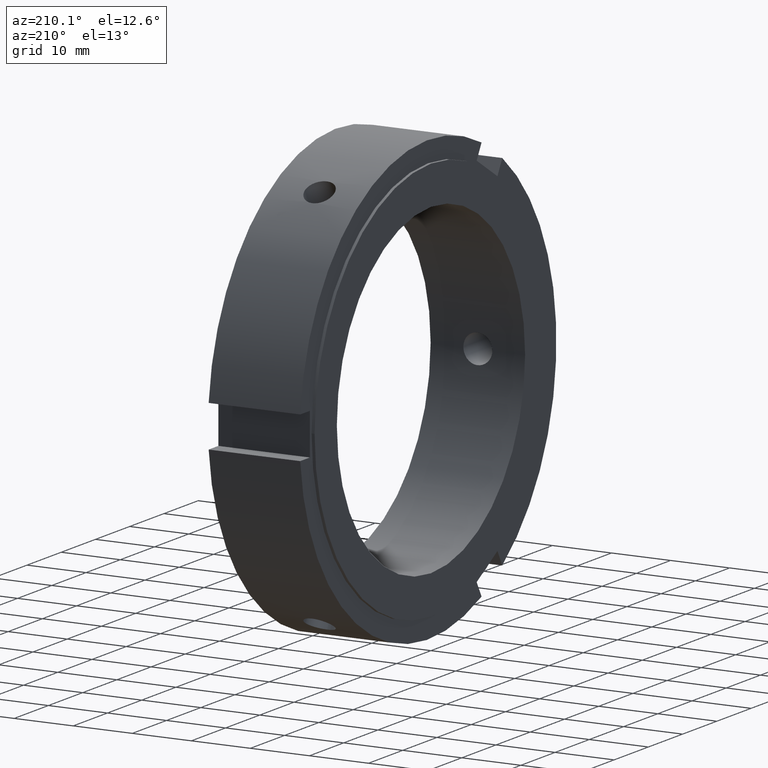
[diagram: clean part render]
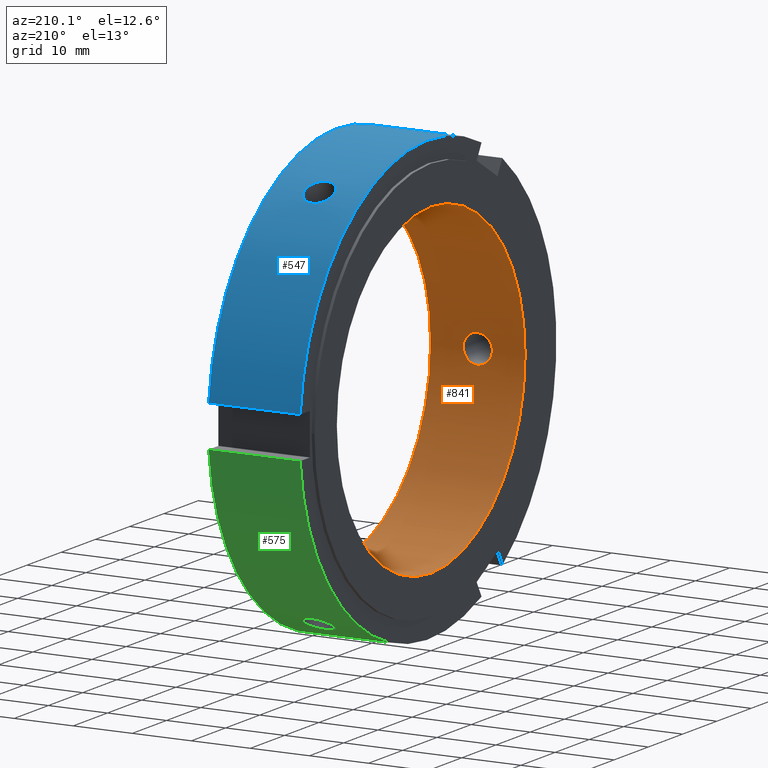
[diagram: same view with three faces highlighted in distinct colors, each labeled with its STEP entity id]
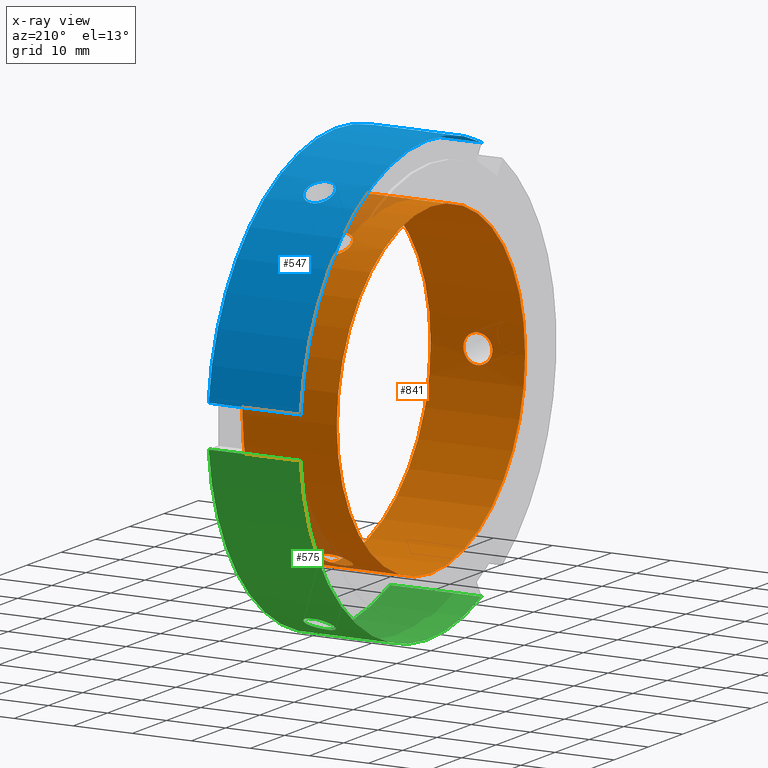
[diagram: x-ray of the same camera — body ghosted, the three highlighted faces saturated]
A machine part, auxiliary view with three faces highlighted in distinct colors.
The next image is the same camera in x-ray (body ghosted, the three faces saturated) — at least one of them is partly hidden behind the body in this view.
Their STEP definitions:

[orange] entity #841 — the highlighted cylindrical surface (bore or boss wall) has radius 27.5 mm, axis along (1, 0, 0).
#216=CARTESIAN_POINT('',(7.999999999999991,15.824065749259187,22.491085860027358));
#217=VERTEX_POINT('',#216);
#218=CARTESIAN_POINT('',(7.999999999999990,15.824065749259182,22.491085860027354));
#219=CARTESIAN_POINT('',(7.691127928927140,15.824065749259182,22.491085860027354));
#220=CARTESIAN_POINT('',(7.361781165696948,15.773459769381567,22.526957607554749));
#221=CARTESIAN_POINT('',(6.756106625812634,15.566529288029738,22.670443710234967));
#222=CARTESIAN_POINT('',(6.479764771078052,15.410061500522726,22.777791838321811));
#223=CARTESIAN_POINT('',(6.043391659325986,15.045971680898859,23.019915995718819));
#224=CARTESIAN_POINT('',(5.854212148169152,14.814005725707379,23.170823302224886));
#225=CARTESIAN_POINT('',(5.603261764644859,14.299844829240742,23.491620974346688));
#226=CARTESIAN_POINT('',(5.541499999999990,14.017490479572585,23.661262903685163));
#227=CARTESIAN_POINT('',(5.541499999999992,13.482509520427419,23.970134304458952));
#228=CARTESIAN_POINT('',(5.603261764644861,13.194418125239217,24.129839379471370));
#229=CARTESIAN_POINT('',(5.854212148169157,12.659518743473512,24.414716941383151));
#230=CARTESIAN_POINT('',(6.043391659325986,12.412846204826833,24.540151698139070));
#231=CARTESIAN_POINT('',(6.479764771078052,12.021115623839190,24.734400652494131));
#232=CARTESIAN_POINT('',(6.756106625812635,11.849915524113781,24.816231667305715));
#233=CARTESIAN_POINT('',(7.361781165696952,11.622187673426776,24.923695669633634));
#234=CARTESIAN_POINT('',(7.691127928927144,11.565818838851092,24.949585860027355));
#235=CARTESIAN_POINT('',(8.308872071072839,11.565818838851092,24.949585860027355));
#236=CARTESIAN_POINT('',(8.638218834303032,11.622187673426774,24.923695669633634));
#237=CARTESIAN_POINT('',(9.243893374187346,11.849915524113776,24.816231667305715));
#238=CARTESIAN_POINT('',(9.520235228921930,12.021115623839185,24.734400652494131));
#239=CARTESIAN_POINT('',(9.956608340673997,12.412846204826828,24.540151698139066));
#240=CARTESIAN_POINT('',(10.145787851830825,12.659518743473509,24.414716941383155));
#241=CARTESIAN_POINT('',(10.396738235355123,13.194418125239215,24.129839379471370));
#242=CARTESIAN_POINT('',(10.458499999999990,13.482509520427419,23.970134304458949));
#243=CARTESIAN_POINT('',(10.458499999999994,14.017490479572585,23.661262903685166));
#244=CARTESIAN_POINT('',(10.396738235355127,14.299844829240737,23.491620974346684));
#245=CARTESIAN_POINT('',(10.145787851830834,14.814005725707375,23.170823302224882));
#246=CARTESIAN_POINT('',(9.956608340674000,15.045971680898859,23.019915995718826));
#247=CARTESIAN_POINT('',(9.520235228921933,15.410061500522726,22.777791838321811));
#248=CARTESIAN_POINT('',(9.243893374187351,15.566529288029736,22.670443710234967));
#249=CARTESIAN_POINT('',(8.638218834303036,15.773459769381565,22.526957607554749));
#250=CARTESIAN_POINT('',(8.308872071072843,15.824065749259182,22.491085860027354));
#251=CARTESIAN_POINT('',(7.999999999999993,15.824065749259182,22.491085860027354));
#252=B_SPLINE_CURVE_WITH_KNOTS('',3,(#218,#219,#220,#221,#222,#223,#224,#225,#226,#227,#228,#229,#230,#231,#232,#233,#234,#235,#236,#237,#238,#239,#240,#241,#242,#243,#244,#245,#246,#247,#248,#249,#250,#251),.UNSPECIFIED.,.T.,.U.,(4,2,2,2,2,2,2,2,2,2,2,2,2,2,2,2,4),(0.0,0.092661621321855,0.185323242643710,0.277984662875846,0.370646083107981,0.463307503340117,0.555968923572252,0.648630544894107,0.741292166215962,0.833953787537816,0.926615408859671,1.019276829091807,1.111938249323943,1.204599669556078,1.297261089788214,1.389922711110069,1.482584332431924),.UNSPECIFIED.);
#253=EDGE_CURVE('',#217,#217,#252,.T.);
#406=CARTESIAN_POINT('',(7.999999999999991,11.565818838851083,-24.949585860027366));
#407=VERTEX_POINT('',#406);
#408=CARTESIAN_POINT('',(7.999999999999993,11.565818838851083,-24.949585860027366));
#409=CARTESIAN_POINT('',(7.691127928927144,11.565818838851083,-24.949585860027366));
#410=CARTESIAN_POINT('',(7.361781165696952,11.622187673426762,-24.923695669633645));
#411=CARTESIAN_POINT('',(6.756106625812638,11.849915524113769,-24.816231667305722));
#412=CARTESIAN_POINT('',(6.479764771078054,12.021115623839176,-24.734400652494138));
#413=CARTESIAN_POINT('',(6.043391659325986,12.412846204826820,-24.540151698139077));
#414=CARTESIAN_POINT('',(5.854212148169155,12.659518743473498,-24.414716941383162));
#415=CARTESIAN_POINT('',(5.603261764644860,13.194418125239210,-24.129839379471370));
#416=CARTESIAN_POINT('',(5.541499999999991,13.482509520427408,-23.970134304458952));
#417=CARTESIAN_POINT('',(5.541499999999991,14.017490479572576,-23.661262903685163));
#418=CARTESIAN_POINT('',(5.603261764644861,14.299844829240733,-23.491620974346688));
#419=CARTESIAN_POINT('',(5.854212148169157,14.814005725707368,-23.170823302224886));
#420=CARTESIAN_POINT('',(6.043391659325986,15.045971680898854,-23.019915995718829));
#421=CARTESIAN_POINT('',(6.479764771078052,15.410061500522719,-22.777791838321818));
#422=CARTESIAN_POINT('',(6.756106625812635,15.566529288029722,-22.670443710234970));
#423=CARTESIAN_POINT('',(7.361781165696948,15.773459769381553,-22.526957607554756));
#424=CARTESIAN_POINT('',(7.691127928927141,15.824065749259169,-22.491085860027358));
#425=CARTESIAN_POINT('',(8.308872071072839,15.824065749259171,-22.491085860027361));
#426=CARTESIAN_POINT('',(8.638218834303030,15.773459769381555,-22.526957607554756));
#427=CARTESIAN_POINT('',(9.243893374187346,15.566529288029724,-22.670443710234977));
#428=CARTESIAN_POINT('',(9.520235228921932,15.410061500522730,-22.777791838321821));
#429=CARTESIAN_POINT('',(9.956608340674000,15.045971680898862,-23.019915995718829));
#430=CARTESIAN_POINT('',(10.145787851830825,14.814005725707371,-23.170823302224889));
#431=CARTESIAN_POINT('',(10.396738235355121,14.299844829240733,-23.491620974346688));
#432=CARTESIAN_POINT('',(10.458499999999994,14.017490479572579,-23.661262903685163));
#433=CARTESIAN_POINT('',(10.458499999999994,13.482509520427408,-23.970134304458952));
#434=CARTESIAN_POINT('',(10.396738235355121,13.194418125239210,-24.129839379471370));
#435=CARTESIAN_POINT('',(10.145787851830825,12.659518743473498,-24.414716941383162));
#436=CARTESIAN_POINT('',(9.956608340673999,12.412846204826820,-24.540151698139077));
#437=CARTESIAN_POINT('',(9.520235228921932,12.021115623839176,-24.734400652494138));
#438=CARTESIAN_POINT('',(9.243893374187346,11.849915524113763,-24.816231667305722));
#439=CARTESIAN_POINT('',(8.638218834303032,11.622187673426760,-24.923695669633645));
#440=CARTESIAN_POINT('',(8.308872071072841,11.565818838851083,-24.949585860027366));
#441=CARTESIAN_POINT('',(7.999999999999991,11.565818838851083,-24.949585860027366));
#442=B_SPLINE_CURVE_WITH_KNOTS('',3,(#408,#409,#410,#411,#412,#413,#414,#415,#416,#417,#418,#419,#420,#421,#422,#423,#424,#425,#426,#427,#428,#429,#430,#431,#432,#433,#434,#435,#436,#437,#438,#439,#440,#441),.UNSPECIFIED.,.T.,.U.,(4,2,2,2,2,2,2,2,2,2,2,2,2,2,2,2,4),(0.0,0.092661621321855,0.185323242643709,0.277984662875845,0.370646083107981,0.463307503340117,0.555968923572253,0.648630544894107,0.741292166215962,0.833953787537817,0.926615408859671,1.019276829091807,1.111938249323944,1.204599669556080,1.297261089788216,1.389922711110070,1.482584332431925),.UNSPECIFIED.);
#443=EDGE_CURVE('',#407,#407,#442,.T.);
#508=CARTESIAN_POINT('',(15.999999999999996,27.500000000000000,0.0));
#509=VERTEX_POINT('',#508);
#510=CARTESIAN_POINT('',(15.999999999999996,0.0,0.0));
#511=DIRECTION('',(1.0,0.0,0.0));
#512=DIRECTION('',(0.0,1.0,0.0));
#513=AXIS2_PLACEMENT_3D('',#510,#511,#512);
#514=CIRCLE('',#513,27.500000000000000);
#515=EDGE_CURVE('',#509,#509,#514,.T.);
#643=CARTESIAN_POINT('',(7.999999999999991,-27.389884588110260,2.458500000000000));
#644=VERTEX_POINT('',#643);
#645=CARTESIAN_POINT('',(7.999999999999993,-27.389884588110260,2.458500000000000));
#646=CARTESIAN_POINT('',(7.691127928927144,-27.389884588110260,2.458500000000000));
#647=CARTESIAN_POINT('',(7.361781165696950,-27.395647442808322,2.396738062078883));
#648=CARTESIAN_POINT('',(6.756106625812635,-27.416444812143492,2.145787957070748));
#649=CARTESIAN_POINT('',(6.479764771078052,-27.431177124361909,1.956608814172314));
#650=CARTESIAN_POINT('',(6.043391659325984,-27.458817885725679,1.520235702420247));
#651=CARTESIAN_POINT('',(5.854212148169155,-27.473524469180877,1.243893639158268));
#652=CARTESIAN_POINT('',(5.603261764644859,-27.494262954479947,0.638218405124681));
#653=CARTESIAN_POINT('',(5.541499999999991,-27.500000000000000,0.308871400773786));
#654=CARTESIAN_POINT('',(5.541499999999991,-27.500000000000000,-0.308871400773786));
#655=CARTESIAN_POINT('',(5.603261764644859,-27.494262954479947,-0.638218405124681));
#656=CARTESIAN_POINT('',(5.854212148169155,-27.473524469180877,-1.243893639158268));
#657=CARTESIAN_POINT('',(6.043391659325984,-27.458817885725679,-1.520235702420247));
#658=CARTESIAN_POINT('',(6.479764771078052,-27.431177124361909,-1.956608814172314));
#659=CARTESIAN_POINT('',(6.756106625812635,-27.416444812143492,-2.145787957070748));
#660=CARTESIAN_POINT('',(7.361781165696950,-27.395647442808322,-2.396738062078883));
#661=CARTESIAN_POINT('',(7.691127928927143,-27.389884588110260,-2.458500000000000));
#662=CARTESIAN_POINT('',(8.308872071072841,-27.389884588110260,-2.458500000000000));
#663=CARTESIAN_POINT('',(8.638218834303032,-27.395647442808322,-2.396738062078883));
#664=CARTESIAN_POINT('',(9.243893374187348,-27.416444812143492,-2.145787957070748));
#665=CARTESIAN_POINT('',(9.520235228921932,-27.431177124361909,-1.956608814172314));
#666=CARTESIAN_POINT('',(9.956608340673999,-27.458817885725679,-1.520235702420246));
#667=CARTESIAN_POINT('',(10.145787851830825,-27.473524469180880,-1.243893639158267));
#668=CARTESIAN_POINT('',(10.396738235355121,-27.494262954479950,-0.638218405124680));
#669=CARTESIAN_POINT('',(10.458499999999994,-27.500000000000000,-0.308871400773786));
#670=CARTESIAN_POINT('',(10.458499999999994,-27.500000000000000,0.308871400773785));
#671=CARTESIAN_POINT('',(10.396738235355125,-27.494262954479950,0.638218405124680));
#672=CARTESIAN_POINT('',(10.145787851830830,-27.473524469180880,1.243893639158266));
#673=CARTESIAN_POINT('',(9.956608340674000,-27.458817885725679,1.520235702420246));
#674=CARTESIAN_POINT('',(9.520235228921932,-27.431177124361909,1.956608814172314));
#675=CARTESIAN_POINT('',(9.243893374187348,-27.416444812143492,2.145787957070748));
#676=CARTESIAN_POINT('',(8.638218834303036,-27.395647442808322,2.396738062078882));
#677=CARTESIAN_POINT('',(8.308872071072843,-27.389884588110260,2.458500000000000));
#678=CARTESIAN_POINT('',(7.999999999999993,-27.389884588110260,2.458500000000000));
#679=B_SPLINE_CURVE_WITH_KNOTS('',3,(#645,#646,#647,#648,#649,#650,#651,#652,#653,#654,#655,#656,#657,#658,#659,#660,#661,#662,#663,#664,#665,#666,#667,#668,#669,#670,#671,#672,#673,#674,#675,#676,#677,#678),.UNSPECIFIED.,.T.,.U.,(4,2,2,2,2,2,2,2,2,2,2,2,2,2,2,2,4),(0.0,0.092661621321855,0.185323242643709,0.277984662875845,0.370646083107981,0.463307503340117,0.555968923572252,0.648630544894107,0.741292166215962,0.833953787537816,0.926615408859671,1.019276829091807,1.111938249323943,1.204599669556078,1.297261089788214,1.389922711110069,1.482584332431923),.UNSPECIFIED.);
#680=EDGE_CURVE('',#644,#644,#679,.T.);
#766=CARTESIAN_POINT('',(-7.525546E-015,27.500000000000000,0.0));
#767=VERTEX_POINT('',#766);
#768=CARTESIAN_POINT('',(-7.524363E-015,0.0,0.0));
#769=DIRECTION('',(1.0,0.0,0.0));
#770=DIRECTION('',(0.0,1.0,0.0));
#771=AXIS2_PLACEMENT_3D('',#768,#769,#770);
#772=CIRCLE('',#771,27.500000000000000);
#773=EDGE_CURVE('',#767,#767,#772,.T.);
#821=CARTESIAN_POINT('',(7.999999999999995,0.0,0.0));
#822=DIRECTION('',(1.0,0.0,0.0));
#823=DIRECTION('',(0.0,1.0,0.0));
#824=AXIS2_PLACEMENT_3D('',#821,#822,#823);
#825=CYLINDRICAL_SURFACE('',#824,27.500000000000000);
#826=ORIENTED_EDGE('',*,*,#773,.F.);
#827=EDGE_LOOP('',(#826));
#828=FACE_OUTER_BOUND('',#827,.T.);
#829=ORIENTED_EDGE('',*,*,#253,.T.);
#830=EDGE_LOOP('',(#829));
#831=FACE_BOUND('',#830,.T.);
#832=ORIENTED_EDGE('',*,*,#443,.T.);
#833=EDGE_LOOP('',(#832));
#834=FACE_BOUND('',#833,.T.);
#835=ORIENTED_EDGE('',*,*,#680,.T.);
#836=EDGE_LOOP('',(#835));
#837=FACE_BOUND('',#836,.T.);
#838=ORIENTED_EDGE('',*,*,#515,.T.);
#839=EDGE_LOOP('',(#838));
#840=FACE_BOUND('',#839,.T.);
#841=ADVANCED_FACE('',(#828,#831,#834,#837,#840),#825,.F.);

[blue] entity #547 — the highlighted cylindrical surface (partial cylindrical patch) has radius 37.5 mm, axis along (1, 0, 0).
#175=CARTESIAN_POINT('',(7.999999999999991,20.838785248980557,31.176834819251145));
#176=VERTEX_POINT('',#175);
#177=CARTESIAN_POINT('',(7.999999999999993,20.838785248980550,31.176834819251141));
#178=CARTESIAN_POINT('',(8.308789855491268,20.838785248980550,31.176834819251141));
#179=CARTESIAN_POINT('',(8.638101463612033,20.787433464880102,31.211350642644668));
#180=CARTESIAN_POINT('',(9.243798818486692,20.577737836051966,31.350000072030181));
#181=CARTESIAN_POINT('',(9.520192088796129,20.419288268104793,31.453940826156330));
#182=CARTESIAN_POINT('',(9.956651817806305,20.051430625994435,31.689712158089051));
#183=CARTESIAN_POINT('',(10.145843650462448,19.817457191254583,31.837244944203761));
#184=CARTESIAN_POINT('',(10.396770190486526,19.300509198690861,32.153259863268254));
#185=CARTESIAN_POINT('',(10.458499999999994,19.017419692028774,32.321557810737033));
#186=CARTESIAN_POINT('',(10.458499999999994,18.482580307971261,32.630347473095853));
#187=CARTESIAN_POINT('',(10.396770190486533,18.195285256727477,32.791361203675635));
#188=CARTESIAN_POINT('',(10.145843650462457,17.663134312560889,33.081043838138939));
#189=CARTESIAN_POINT('',(9.956651817806305,17.418380454524531,33.209904383376994));
#190=CARTESIAN_POINT('',(9.520192088796133,17.030267670531522,33.410592780454451));
#191=CARTESIAN_POINT('',(9.243798818486697,16.861027552996163,33.495843754452295));
#192=CARTESIAN_POINT('',(8.638101463612040,16.636105810514024,33.608120781387257));
#193=CARTESIAN_POINT('',(8.308789855491268,16.580538338572467,33.635334819251142));
#194=CARTESIAN_POINT('',(7.691210144508716,16.580538338572467,33.635334819251142));
#195=CARTESIAN_POINT('',(7.361898536387942,16.636105810514024,33.608120781387257));
#196=CARTESIAN_POINT('',(6.756201181513286,16.861027552996159,33.495843754452295));
#197=CARTESIAN_POINT('',(6.479807911203852,17.030267670531522,33.410592780454451));
#198=CARTESIAN_POINT('',(6.043348182193677,17.418380454524531,33.209904383376994));
#199=CARTESIAN_POINT('',(5.854156349537528,17.663134312560885,33.081043838138939));
#200=CARTESIAN_POINT('',(5.603229809513452,18.195285256727473,32.791361203675635));
#201=CARTESIAN_POINT('',(5.541499999999990,18.482580307971261,32.630347473095853));
#202=CARTESIAN_POINT('',(5.541499999999992,19.017419692028774,32.321557810737033));
#203=CARTESIAN_POINT('',(5.603229809513453,19.300509198690861,32.153259863268246));
#204=CARTESIAN_POINT('',(5.854156349537534,19.817457191254579,31.837244944203761));
#205=CARTESIAN_POINT('',(6.043348182193677,20.051430625994435,31.689712158089051));
#206=CARTESIAN_POINT('',(6.479807911203855,20.419288268104793,31.453940826156330));
#207=CARTESIAN_POINT('',(6.756201181513291,20.577737836051966,31.350000072030181));
#208=CARTESIAN_POINT('',(7.361898536387948,20.787433464880102,31.211350642644668));
#209=CARTESIAN_POINT('',(7.691210144508717,20.838785248980550,31.176834819251141));
#210=CARTESIAN_POINT('',(7.999999999999993,20.838785248980550,31.176834819251141));
#211=B_SPLINE_CURVE_WITH_KNOTS('',3,(#177,#178,#179,#180,#181,#182,#183,#184,#185,#186,#187,#188,#189,#190,#191,#192,#193,#194,#195,#196,#197,#198,#199,#200,#201,#202,#203,#204,#205,#206,#207,#208,#209,#210),.UNSPECIFIED.,.T.,.U.,(4,2,2,2,2,2,2,2,2,2,2,2,2,2,2,2,4),(0.0,0.092636956647383,0.185273913294765,0.277910812002411,0.370547710710057,0.463184609417703,0.555821508125348,0.648458464772731,0.741095421420114,0.833732378067497,0.926369334714880,1.019006233422525,1.111643132130171,1.204280030837817,1.296916929545463,1.389553886192845,1.482190842840228),.UNSPECIFIED.);
#212=EDGE_CURVE('',#176,#176,#211,.T.);
#265=CARTESIAN_POINT('',(0.499999999999989,-15.637065789348926,34.084192428449484));
#266=VERTEX_POINT('',#265);
#281=CARTESIAN_POINT('',(15.999999999999995,-15.637065789348927,34.084192428449491));
#282=VERTEX_POINT('',#281);
#289=CARTESIAN_POINT('',(0.499999999999989,-15.637065789348927,34.084192428449491));
#290=DIRECTION('',(1.0,0.0,0.0));
#291=VECTOR('',#290,15.500000000000005);
#292=LINE('',#289,#291);
#293=EDGE_CURVE('',#266,#282,#292,.T.);
#481=CARTESIAN_POINT('',(15.999999999999995,37.336309405188935,3.499999999999999));
#482=VERTEX_POINT('',#481);
#489=CARTESIAN_POINT('',(15.999999999999993,0.0,0.0));
#490=DIRECTION('',(1.0,0.0,0.0));
#491=DIRECTION('',(0.0,1.0,0.0));
#492=AXIS2_PLACEMENT_3D('',#489,#490,#491);
#493=CIRCLE('',#492,37.500000000000000);
#494=EDGE_CURVE('',#482,#282,#493,.T.);
#520=CARTESIAN_POINT('',(8.249999999999991,0.0,0.0));
#521=DIRECTION('',(1.0,0.0,0.0));
#522=DIRECTION('',(0.0,1.0,0.0));
#523=AXIS2_PLACEMENT_3D('',#520,#521,#522);
#524=CYLINDRICAL_SURFACE('',#523,37.500000000000000);
#525=ORIENTED_EDGE('',*,*,#293,.T.);
#526=ORIENTED_EDGE('',*,*,#494,.F.);
#527=CARTESIAN_POINT('',(0.499999999999989,37.336309405188935,3.499999999999999));
#528=VERTEX_POINT('',#527);
#529=CARTESIAN_POINT('',(15.999999999999995,37.336309405188935,3.499999999999999));
#530=DIRECTION('',(-1.0,0.0,0.0));
#531=VECTOR('',#530,15.500000000000005);
#532=LINE('',#529,#531);
#533=EDGE_CURVE('',#482,#528,#532,.T.);
#534=ORIENTED_EDGE('',*,*,#533,.T.);
#535=CARTESIAN_POINT('',(0.499999999999989,0.0,0.0));
#536=DIRECTION('',(1.0,0.0,0.0));
#537=DIRECTION('',(0.0,1.0,0.0));
#538=AXIS2_PLACEMENT_3D('',#535,#536,#537);
#539=CIRCLE('',#538,37.499999999999993);
#540=EDGE_CURVE('',#528,#266,#539,.T.);
#541=ORIENTED_EDGE('',*,*,#540,.T.);
#542=EDGE_LOOP('',(#525,#526,#534,#541));
#543=FACE_OUTER_BOUND('',#542,.T.);
#544=ORIENTED_EDGE('',*,*,#212,.T.);
#545=EDGE_LOOP('',(#544));
#546=FACE_BOUND('',#545,.T.);
#547=ADVANCED_FACE('',(#543,#546),#524,.T.);

[green] entity #575 — the highlighted cylindrical surface (partial cylindrical patch) has radius 37.5 mm, axis along (1, 0, 0).
#113=CARTESIAN_POINT('',(0.499999999999989,-15.637065789348954,-34.084192428449470));
#114=VERTEX_POINT('',#113);
#123=CARTESIAN_POINT('',(15.999999999999995,-15.637065789348956,-34.084192428449484));
#124=VERTEX_POINT('',#123);
#125=CARTESIAN_POINT('',(15.999999999999995,-15.637065789348949,-34.084192428449477));
#126=DIRECTION('',(-1.0,0.0,0.0));
#127=VECTOR('',#126,15.500000000000005);
#128=LINE('',#125,#127);
#129=EDGE_CURVE('',#124,#114,#128,.T.);
#365=CARTESIAN_POINT('',(7.999999999999991,16.580538338572449,-33.635334819251156));
#366=VERTEX_POINT('',#365);
#367=CARTESIAN_POINT('',(7.999999999999991,16.580538338572449,-33.635334819251156));
#368=CARTESIAN_POINT('',(8.308789855491268,16.580538338572449,-33.635334819251156));
#369=CARTESIAN_POINT('',(8.638101463612035,16.636105810514007,-33.608120781387271));
#370=CARTESIAN_POINT('',(9.243798818486692,16.861027552996141,-33.495843754452309));
#371=CARTESIAN_POINT('',(9.520192088796129,17.030267670531494,-33.410592780454465));
#372=CARTESIAN_POINT('',(9.956651817806305,17.418380454524499,-33.209904383377015));
#373=CARTESIAN_POINT('',(10.145843650462449,17.663134312560857,-33.081043838138953));
#374=CARTESIAN_POINT('',(10.396770190486532,18.195285256727448,-32.791361203675649));
#375=CARTESIAN_POINT('',(10.458499999999994,18.482580307971233,-32.630347473095853));
#376=CARTESIAN_POINT('',(10.458499999999994,19.017419692028746,-32.321557810737033));
#377=CARTESIAN_POINT('',(10.396770190486532,19.300509198690840,-32.153259863268261));
#378=CARTESIAN_POINT('',(10.145843650462453,19.817457191254555,-31.837244944203775));
#379=CARTESIAN_POINT('',(9.956651817806305,20.051430625994406,-31.689712158089065));
#380=CARTESIAN_POINT('',(9.520192088796133,20.419288268104765,-31.453940826156348));
#381=CARTESIAN_POINT('',(9.243798818486694,20.577737836051952,-31.350000072030191));
#382=CARTESIAN_POINT('',(8.638101463612035,20.787433464880081,-31.211350642644682));
#383=CARTESIAN_POINT('',(8.308789855491268,20.838785248980535,-31.176834819251155));
#384=CARTESIAN_POINT('',(7.691210144508716,20.838785248980535,-31.176834819251155));
#385=CARTESIAN_POINT('',(7.361898536387942,20.787433464880078,-31.211350642644678));
#386=CARTESIAN_POINT('',(6.756201181513286,20.577737836051945,-31.350000072030188));
#387=CARTESIAN_POINT('',(6.479807911203849,20.419288268104765,-31.453940826156348));
#388=CARTESIAN_POINT('',(6.043348182193677,20.051430625994406,-31.689712158089065));
#389=CARTESIAN_POINT('',(5.854156349537530,19.817457191254555,-31.837244944203775));
#390=CARTESIAN_POINT('',(5.603229809513453,19.300509198690840,-32.153259863268261));
#391=CARTESIAN_POINT('',(5.541499999999990,19.017419692028746,-32.321557810737033));
#392=CARTESIAN_POINT('',(5.541499999999992,18.482580307971233,-32.630347473095860));
#393=CARTESIAN_POINT('',(5.603229809513453,18.195285256727448,-32.791361203675649));
#394=CARTESIAN_POINT('',(5.854156349537534,17.663134312560857,-33.081043838138953));
#395=CARTESIAN_POINT('',(6.043348182193677,17.418380454524502,-33.209904383377015));
#396=CARTESIAN_POINT('',(6.479807911203855,17.030267670531494,-33.410592780454465));
#397=CARTESIAN_POINT('',(6.756201181513291,16.861027552996138,-33.495843754452309));
#398=CARTESIAN_POINT('',(7.361898536387948,16.636105810514003,-33.608120781387271));
#399=CARTESIAN_POINT('',(7.691210144508716,16.580538338572449,-33.635334819251156));
#400=CARTESIAN_POINT('',(7.999999999999991,16.580538338572449,-33.635334819251156));
#401=B_SPLINE_CURVE_WITH_KNOTS('',3,(#367,#368,#369,#370,#371,#372,#373,#374,#375,#376,#377,#378,#379,#380,#381,#382,#383,#384,#385,#386,#387,#388,#389,#390,#391,#392,#393,#394,#395,#396,#397,#398,#399,#400),.UNSPECIFIED.,.T.,.U.,(4,2,2,2,2,2,2,2,2,2,2,2,2,2,2,2,4),(0.0,0.092636956647383,0.185273913294765,0.277910812002411,0.370547710710057,0.463184609417703,0.555821508125348,0.648458464772731,0.741095421420114,0.833732378067497,0.926369334714880,1.019006233422525,1.111643132130171,1.204280030837817,1.296916929545463,1.389553886192845,1.482190842840228),.UNSPECIFIED.);
#402=EDGE_CURVE('',#366,#366,#401,.T.);
#456=CARTESIAN_POINT('',(15.999999999999995,37.336309405188935,-3.499999999999999));
#457=VERTEX_POINT('',#456);
#458=CARTESIAN_POINT('',(15.999999999999993,0.0,0.0));
#459=DIRECTION('',(1.0,0.0,0.0));
#460=DIRECTION('',(0.0,1.0,0.0));
#461=AXIS2_PLACEMENT_3D('',#458,#459,#460);
#462=CIRCLE('',#461,37.500000000000000);
#463=EDGE_CURVE('',#124,#457,#462,.T.);
#548=CARTESIAN_POINT('',(8.249999999999991,0.0,0.0));
#549=DIRECTION('',(1.0,0.0,0.0));
#550=DIRECTION('',(0.0,1.0,0.0));
#551=AXIS2_PLACEMENT_3D('',#548,#549,#550);
#552=CYLINDRICAL_SURFACE('',#551,37.500000000000000);
#553=ORIENTED_EDGE('',*,*,#129,.T.);
#554=CARTESIAN_POINT('',(0.499999999999989,37.336309405188935,-3.499999999999999));
#555=VERTEX_POINT('',#554);
#556=CARTESIAN_POINT('',(0.499999999999989,0.0,0.0));
#557=DIRECTION('',(1.0,0.0,0.0));
#558=DIRECTION('',(0.0,1.0,0.0));
#559=AXIS2_PLACEMENT_3D('',#556,#557,#558);
#560=CIRCLE('',#559,37.499999999999993);
#561=EDGE_CURVE('',#114,#555,#560,.T.);
#562=ORIENTED_EDGE('',*,*,#561,.T.);
#563=CARTESIAN_POINT('',(0.499999999999989,37.336309405188935,-3.499999999999999));
#564=DIRECTION('',(1.0,0.0,0.0));
#565=VECTOR('',#564,15.500000000000005);
#566=LINE('',#563,#565);
#567=EDGE_CURVE('',#555,#457,#566,.T.);
#568=ORIENTED_EDGE('',*,*,#567,.T.);
#569=ORIENTED_EDGE('',*,*,#463,.F.);
#570=EDGE_LOOP('',(#553,#562,#568,#569));
#571=FACE_OUTER_BOUND('',#570,.T.);
#572=ORIENTED_EDGE('',*,*,#402,.T.);
#573=EDGE_LOOP('',(#572));
#574=FACE_BOUND('',#573,.T.);
#575=ADVANCED_FACE('',(#571,#574),#552,.T.);